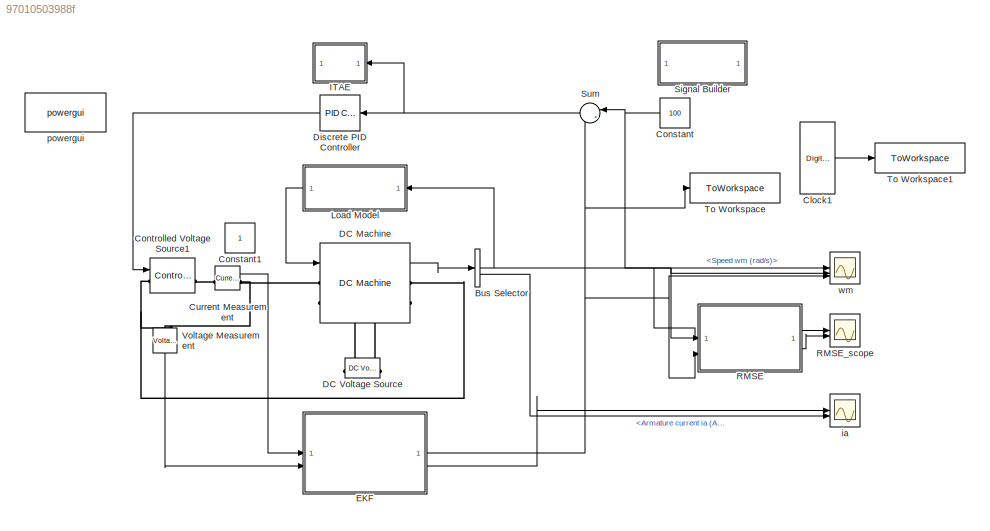
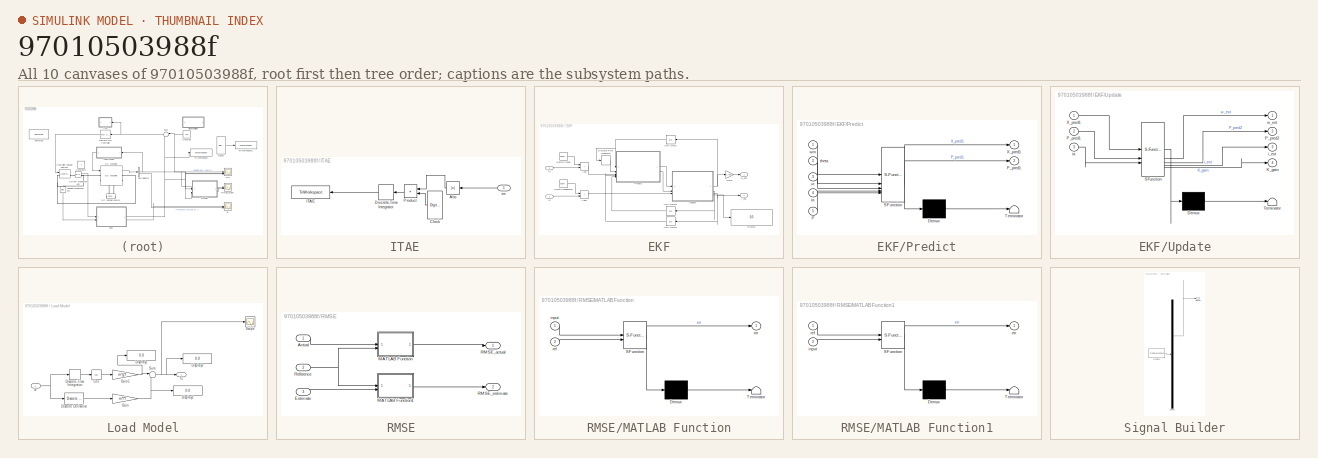
[diagram: thumbnail index - all 10 canvases of the model, root first then tree order]
MODEL slx_97010503988f
KIND model
CONFIG AbsTol = auto
CONFIG EnableMultiTasking = off
CONFIG FixedStep = auto
CONFIG InitFcn = P = eye(2);\nQ_prev = [0.5 0; 0 0.5];\nR_prev = eye(2);
CONFIG MaxStep = auto
CONFIG MinStep = auto
CONFIG PostLoadFcn = P = eye(2);\nQ_prev = [0.5 0; 0 0.5];\nR_prev = eye(2);
CONFIG PreLoadFcn = P = eye(2);\nQ_prev = [0.5 0; 0 0.5];\nR_prev = eye(2);
CONFIG RelTol = 1e-3
CONFIG SampleTimeConstraint = Unconstrained
CONFIG SolverName = VariableStepAuto
CONFIG StartFcn = P = eye(2);\nQ_prev = [0.5 0; 0 0.5];\nR_prev = eye(2);
CONFIG StartTime = 0.0
CONFIG StopTime = 1
BLOCK [SubSystem]  ITAE
  NameLocation = top
BLOCK [Abs]  ITAE/Abs
  NameLocation = top
  SaturateOnIntegerOverflow = off
BLOCK [DigitalClock]  ITAE/Clock
  NameLocation = top
  SampleTime = 10e-06
BLOCK [DiscreteIntegrator]  ITAE/Discrete-Time Integrator
  ICPrevOutput = DiscIntNeverNeededParam
  ICPrevScaledInput = DiscIntNeverNeededParam
  InitialConditionSetting = Auto
  NameLocation = top
  SampleTime = -1
BLOCK [ToWorkspace]  ITAE/ITAE
  FixptAsFi = on
  MaxDataPoints = inf
  SampleTime = -1
  Save2DSignal = 2-D array (concatenate along first dimension)
  VariableName = ITAE
BLOCK [Product]  ITAE/Product
  NameLocation = top
BLOCK [Inport]  ITAE/err
  NameLocation = top
BLOCK [BusSelector] Bus Selector
  OutputSignals = Speed wm (rad/s),Armature current ia (A)
BLOCK [DigitalClock] Clock1
  SampleTime = Ts
BLOCK [Constant] Constant
  NameLocation = top
  SampleTime = Ts
  Value = 100
BLOCK [Constant] Constant1
BLOCK [Reference] Controlled Voltage Source1  REF=spsControlledVoltageSourceLib/Controlled Voltage Source
  LibrarySourceBlock = sps_lib/Sources/Controlled Voltage Source
  NameLocation = left
  SourceBlock = spsControlledVoltageSourceLib/Controlled Voltage Source
  SourceType = Controlled Voltage Source
BLOCK [Reference] Current Measurement  REF=spsCurrentMeasurementLib/Current Measurement
  LibrarySourceBlock = sps_lib/Sensors and Measurements/Current Measurement
  SourceBlock = spsCurrentMeasurementLib/Current Measurement
  SourceType = Current Measurement
  UserDataPersistent = on
BLOCK [Reference] DC Machine  REF=spsDCMachineLib/DC Machine
  LibrarySourceBlock = sps_lib/Electrical Machines/DC Machine
  SourceBlock = spsDCMachineLib/DC Machine
  SourceType = DC machine
BLOCK [Reference] DC Voltage Source  REF=spsDCVoltageSourceLib/DC Voltage Source
  LibrarySourceBlock = sps_lib/Sources/DC Voltage Source
  NameLocation = right
  SourceBlock = spsDCVoltageSourceLib/DC Voltage Source
  SourceType = DC Voltage Source
BLOCK [Reference] Discrete PID Controller  REF=slpidlib/PID Controller
  LibrarySourceBlock = hdlsllib/Discrete/Discrete PID Controller
  NameLocation = top
  SourceBlock = slpidlib/PID Controller
  SourceType = PID 1dof
BLOCK [SubSystem] EKF
BLOCK [Sum] EKF/Add
  IconShape = rectangular
BLOCK [Sum] EKF/Add1
  IconShape = rectangular
BLOCK [DiscreteIntegrator] EKF/Discrete-Time Integrator
  ICPrevOutput = DiscIntNeverNeededParam
  ICPrevScaledInput = DiscIntNeverNeededParam
  InitialConditionSetting = Auto
  SampleTime = -1
BLOCK [Display] EKF/Display
  Decimation = 1
BLOCK [Gain] EKF/Gain1
  Gain = 1.406
BLOCK [Inport] EKF/Ia
BLOCK [Reference] EKF/Noise Pengukuran  REF=simulink/Sources/Band-Limited
White Noise
  SourceBlock = simulink/Sources/Band-Limited\nWhite Noise
  SourceType = Band-Limited White Noise.
BLOCK [Reference] EKF/Noise Proses  REF=simulink/Sources/Band-Limited
White Noise
  SourceBlock = simulink/Sources/Band-Limited\nWhite Noise
  SourceType = Band-Limited White Noise.
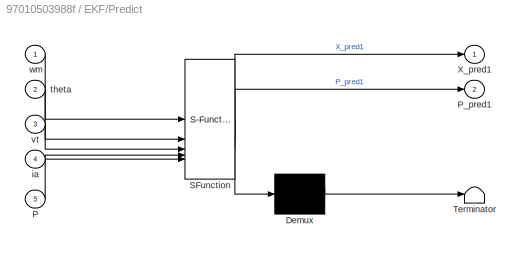
BLOCK [SubSystem] EKF/Predict
  ErrorFcn = Stateflow.Translate.translate
  LibrarySourceBlock = simulink/User-Defined\nFunctions/MATLAB Function
  PermitHierarchicalResolution = ExplicitOnly
  SFBlockType = MATLAB Function
  TreatAsAtomicUnit = on
BLOCK [Demux] EKF/Predict/ Demux 
  Outputs = 1
BLOCK [S-Function] EKF/Predict/ SFunction 
  EnableBusSupport = on
  FunctionName = sf_sfun
  PortCounts = [5 3]
  SFcnIsStateOwnerBlock = off
  SFunctionDeploymentMode = off
  Tag = Stateflow S-Function 6
BLOCK [Terminator] EKF/Predict/ Terminator 
BLOCK [Inport] EKF/Predict/P
  Port = 5
BLOCK [Outport] EKF/Predict/P_pred1
  Port = 2
BLOCK [Outport] EKF/Predict/X_pred1
BLOCK [Inport] EKF/Predict/ia
  Port = 4
BLOCK [Inport] EKF/Predict/theta
  Port = 2
BLOCK [Inport] EKF/Predict/vt
  Port = 3
BLOCK [Inport] EKF/Predict/wm
BLOCK [UnitDelay] EKF/Unit Delay
  HasFrameUpgradeWarning = on
  NameLocation = top
  SampleTime = -1
BLOCK [UnitDelay] EKF/Unit Delay1
  HasFrameUpgradeWarning = on
  NameLocation = top
  SampleTime = -1
BLOCK [UnitDelay] EKF/Unit Delay2
  HasFrameUpgradeWarning = on
  NameLocation = top
  SampleTime = -1
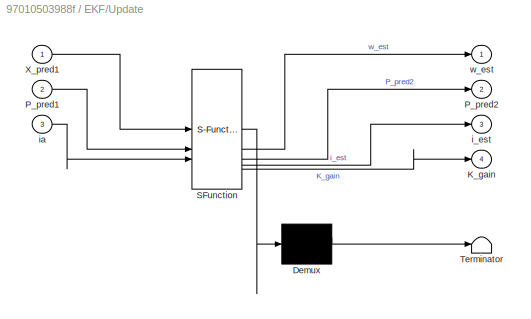
BLOCK [SubSystem] EKF/Update
  ErrorFcn = Stateflow.Translate.translate
  LibrarySourceBlock = simulink/User-Defined\nFunctions/MATLAB Function
  PermitHierarchicalResolution = ExplicitOnly
  SFBlockType = MATLAB Function
  TreatAsAtomicUnit = on
BLOCK [Demux] EKF/Update/ Demux 
  Outputs = 1
BLOCK [S-Function] EKF/Update/ SFunction 
  EnableBusSupport = on
  FunctionName = sf_sfun
  PortCounts = [3 5]
  SFcnIsStateOwnerBlock = off
  SFunctionDeploymentMode = off
  Tag = Stateflow S-Function 1
BLOCK [Terminator] EKF/Update/ Terminator 
BLOCK [Outport] EKF/Update/K_gain
  Port = 4
BLOCK [Inport] EKF/Update/P_pred1
  Port = 2
BLOCK [Outport] EKF/Update/P_pred2
  Port = 2
BLOCK [Inport] EKF/Update/X_pred1
BLOCK [Outport] EKF/Update/i_est
  Port = 3
BLOCK [Inport] EKF/Update/ia
  Port = 3
BLOCK [Outport] EKF/Update/w_est
BLOCK [Inport] EKF/Vt
  Port = 2
BLOCK [Outport] EKF/i_est
  Port = 2
  PortDimensions = 1
BLOCK [Outport] EKF/w_est
  PortDimensions = 1
BLOCK [SubSystem] Load Model
BLOCK [Trigonometry] Load Model/Cos
  Operator = cos
BLOCK [Reference] Load Model/Discrete Derivative  REF=simulink/Discrete/Discrete Derivative
  SourceBlock = simulink/Discrete/Discrete Derivative
  SourceType = Discrete Derivative
BLOCK [DiscreteIntegrator] Load Model/Discrete-Time Integrator
  ICPrevOutput = DiscIntNeverNeededParam
  ICPrevScaledInput = DiscIntNeverNeededParam
  InitialConditionSetting = Auto
  SampleTime = -1
BLOCK [Display] Load Model/Display1
  Decimation = 1
BLOCK [Display] Load Model/Display2
  Decimation = 1
BLOCK [Display] Load Model/Display3
  Decimation = 1
BLOCK [Gain] Load Model/Gain
  Gain = m*l*l
  Multiplication = Matrix(K*u)
BLOCK [Gain] Load Model/Gain1
  Gain = m*g*l
  Multiplication = Matrix(K*u)
BLOCK [Scope] Load Model/Scope
  Floating = off
  NumInputPorts = 1
  ScopeSpecificationString = Simulink.scopes.TimeScopeBlockCfg('CurrentConfiguration', extmgr.ConfigurationSet(extmgr.Configuration('Core','General UI',true),extmgr.Configuration('Core','Source UI',true),extmgr.Configuration('Sources','WiredSimulink',true,'DataLoggingVariableName','ScopeData1','DataLoggingSaveFormat','Array','DataLoggingDecimation','1'),extmgr.Configuration('Visuals','Time Domain',true,'SerializedDisplays',{s...<+1693ch>
BLOCK [Sum] Load Model/Sum
  Inputs = |++
BLOCK [Outport] Load Model/TL
  IconDisplay = Signal name
BLOCK [Inport] Load Model/w
BLOCK [SubSystem] RMSE
BLOCK [Inport] RMSE/Actual
BLOCK [Inport] RMSE/Estimate
  Port = 3
BLOCK [SubSystem] RMSE/MATLAB Function
  ErrorFcn = Stateflow.Translate.translate
  LibrarySourceBlock = simulink/User-Defined\nFunctions/MATLAB Function
  PermitHierarchicalResolution = ExplicitOnly
  SFBlockType = MATLAB Function
  TreatAsAtomicUnit = on
BLOCK [Demux] RMSE/MATLAB Function/ Demux 
  Outputs = 1
BLOCK [S-Function] RMSE/MATLAB Function/ SFunction 
  EnableBusSupport = on
  FunctionName = sf_sfun
  PortCounts = [2 2]
  SFcnIsStateOwnerBlock = off
  SFunctionDeploymentMode = off
  Tag = Stateflow S-Function 2
BLOCK [Terminator] RMSE/MATLAB Function/ Terminator 
BLOCK [Outport] RMSE/MATLAB Function/err
BLOCK [Inport] RMSE/MATLAB Function/input
BLOCK [Inport] RMSE/MATLAB Function/ref
  Port = 2
BLOCK [SubSystem] RMSE/MATLAB Function1
  ErrorFcn = Stateflow.Translate.translate
  LibrarySourceBlock = simulink/User-Defined\nFunctions/MATLAB Function
  PermitHierarchicalResolution = ExplicitOnly
  SFBlockType = MATLAB Function
  TreatAsAtomicUnit = on
BLOCK [Demux] RMSE/MATLAB Function1/ Demux 
  Outputs = 1
BLOCK [S-Function] RMSE/MATLAB Function1/ SFunction 
  EnableBusSupport = on
  FunctionName = sf_sfun
  PortCounts = [2 2]
  SFcnIsStateOwnerBlock = off
  SFunctionDeploymentMode = off
  Tag = Stateflow S-Function 3
BLOCK [Terminator] RMSE/MATLAB Function1/ Terminator 
BLOCK [Outport] RMSE/MATLAB Function1/err
BLOCK [Inport] RMSE/MATLAB Function1/input
  Port = 2
BLOCK [Inport] RMSE/MATLAB Function1/ref
BLOCK [Outport] RMSE/RMSE_actual
BLOCK [Outport] RMSE/RMSE_estimate
  Port = 2
BLOCK [Inport] RMSE/Reference
  Port = 2
BLOCK [Scope] RMSE_scope
  Floating = off
  NumInputPorts = 2
  ScopeSpecificationString = Simulink.scopes.TimeScopeBlockCfg('CurrentConfiguration', extmgr.ConfigurationSet(extmgr.Configuration('Core','General UI',true,'FigureColor',[1 1 1]),extmgr.Configuration('Core','Source UI',true),extmgr.Configuration('Sources','WiredSimulink',true,'DataLoggingVariableName','ScopeData1'),extmgr.Configuration('Visuals','Time Domain',true,'SerializedDisplays',{struct('MinYLimReal','-2.04886','MaxYLi...<+1927ch>
BLOCK [SubSystem] Signal Builder
  ClipboardFcn = sigbuilder_block('clipboard');
  CloseFcn = sigbuilder_block('close');
  ContinueFcn = sigbuilder_block('continue');
  CopyFcn = sigbuilder_block('copy');
  DeleteFcn = sigbuilder_block('delete');
  LoadFcn = sigbuilder_block('load');
  MaskHideContents = on
  ModelCloseFcn = sigbuilder_block('modelClose');
  NameChangeFcn = sigbuilder_block('namechange');
  NameLocation = top
  OpenFcn = sigbuilder_block('open',[276 72 550.5 362.5 ]);
  PauseFcn = sigbuilder_block('pause');
  PreSaveFcn = sigbuilder_block('preSave');
  StartFcn = sigbuilder_block('start');
  StopFcn = sigbuilder_block('stop');
  Tag = STV Subsys
BLOCK [Demux] Signal Builder/Demux
  DisplayOption = none
  Outputs = 1
  Tag = STV Demux
BLOCK [FromWorkspace] Signal Builder/FromWs
  Tag = STV FromWs
  VariableName = tuvar
BLOCK [Outport] Signal Builder/Signal 1
  Tag = STV Outport
BLOCK [Sum] Sum
  Inputs = |+-
  NameLocation = top
BLOCK [ToWorkspace] To Workspace
  FixptAsFi = on
  MaxDataPoints = inf
  SampleTime = -1
  Save2DSignal = 2-D array (concatenate along first dimension)
  VariableName = omega
BLOCK [ToWorkspace] To Workspace1
  FixptAsFi = on
  MaxDataPoints = inf
  SampleTime = Ts
  Save2DSignal = 2-D array (concatenate along first dimension)
  VariableName = time
BLOCK [Reference] Voltage Measurement  REF=spsVoltageMeasurementLib/Voltage Measurement
  LibrarySourceBlock = sps_lib/Sensors and Measurements/Voltage Measurement
  NameLocation = left
  SourceBlock = spsVoltageMeasurementLib/Voltage Measurement
  SourceType = Voltage Measurement
  UserDataPersistent = on
BLOCK [Scope] ia
  Floating = off
  NumInputPorts = 2
  ScopeSpecificationString = Simulink.scopes.TimeScopeBlockCfg('CurrentConfiguration', extmgr.ConfigurationSet(extmgr.Configuration('Core','General UI',true,'FigureColor',[1 1 1]),extmgr.Configuration('Core','Source UI',true),extmgr.Configuration('Sources','WiredSimulink',true,'DataLoggingVariableName','ScopeData1'),extmgr.Configuration('Visuals','Time Domain',true,'SerializedDisplays',{struct('MinYLimReal','-31.54936','MaxYL...<+1981ch>
BLOCK [Reference] powergui  REF=spspowerguiLib/powergui
  Priority = 1
  SourceBlock = spspowerguiLib/powergui
  SourceType = PSB option menu block
BLOCK [Scope] wm
  Floating = off
  NumInputPorts = 3
  ScopeSpecificationString = Simulink.scopes.TimeScopeBlockCfg('CurrentConfiguration', extmgr.ConfigurationSet(extmgr.Configuration('Core','General UI',true,'FigureColor',[1 1 1]),extmgr.Configuration('Core','Source UI',true),extmgr.Configuration('Sources','WiredSimulink',true,'DataLogging',true,'DataLoggingVariableName','Scope'),extmgr.Configuration('Visuals','Time Domain',true,'SerializedDisplays',{struct('MinYLimReal','-16...<+2081ch>
LINE  ITAE/Abs:1 ->  ITAE/Product:1
LINE  ITAE/Clock:1 ->  ITAE/Product:2
LINE  ITAE/Discrete-Time Integrator:1 ->  ITAE/ITAE:1
LINE  ITAE/Product:1 ->  ITAE/Discrete-Time Integrator:1
LINE  ITAE/err:1 ->  ITAE/Abs:1
NET Bus Selector:1 -> Load Model:1, RMSE:1, wm:1
LINE Bus Selector:2 -> ia:2
LINE Clock1:1 -> To Workspace1:1
NET Constant:1 -> RMSE:2, Sum:1, wm:2
LINE Current Measurement:1 -> EKF:1
LINE DC Machine:1 -> Bus Selector:1
LINE Discrete PID Controller:1 -> Controlled Voltage Source1:1
LINE EKF/Add1:1 -> EKF/Update:3
LINE EKF/Add:1 -> EKF/Predict:3
LINE EKF/Discrete-Time Integrator:1 -> EKF/Predict:2
LINE EKF/Gain1:1 -> EKF/w_est:1
LINE EKF/Ia:1 -> EKF/Add1:2
LINE EKF/Noise Pengukuran:1 -> EKF/Add1:1
LINE EKF/Noise Proses:1 -> EKF/Add:1
LINE EKF/Predict:1 -> EKF/Update:1
LINE EKF/Predict:2 -> EKF/Update:2
LINE EKF/Unit Delay1:1 -> EKF/Predict:5
LINE EKF/Unit Delay2:1 -> EKF/Predict:4
NET EKF/Unit Delay:1 -> EKF/Discrete-Time Integrator:1, EKF/Predict:1
NET EKF/Update:1 -> EKF/Gain1:1, EKF/Unit Delay:1
LINE EKF/Update:2 -> EKF/Unit Delay1:1
NET EKF/Update:3 -> EKF/Unit Delay2:1, EKF/i_est:1
LINE EKF/Update:4 -> EKF/Display:1
LINE EKF/Vt:1 -> EKF/Add:2
NET EKF:1 -> RMSE:3, Sum:2, To Workspace:1, wm:3
LINE EKF:2 -> ia:1
LINE Load Model/Cos:1 -> Load Model/Gain1:1
LINE Load Model/Discrete Derivative:1 -> Load Model/Gain:1
LINE Load Model/Discrete-Time Integrator:1 -> Load Model/Cos:1
NET Load Model/Gain1:1 -> Load Model/Display2:1, Load Model/Sum:1
NET Load Model/Gain:1 -> Load Model/Display1:1, Load Model/Sum:2
NET Load Model/Sum:1 -> Load Model/Display3:1, Load Model/Scope:1, Load Model/TL:1
NET Load Model/w:1 -> Load Model/Discrete Derivative:1, Load Model/Discrete-Time Integrator:1
LINE Load Model:1 -> DC Machine:1
LINE RMSE/Actual:1 -> RMSE/MATLAB Function:1
LINE RMSE/Estimate:1 -> RMSE/MATLAB Function1:2
LINE RMSE/MATLAB Function1:1 -> RMSE/RMSE_estimate:1
LINE RMSE/MATLAB Function:1 -> RMSE/RMSE_actual:1
NET RMSE/Reference:1 -> RMSE/MATLAB Function1:1, RMSE/MATLAB Function:2
LINE RMSE:1 -> RMSE_scope:1
LINE RMSE:2 -> RMSE_scope:2
NET Sum:1 ->  ITAE:1, Discrete PID Controller:1
LINE Voltage Measurement:1 -> EKF:2
PNET net1: Controlled Voltage Source1:LConn1 -- DC Machine:RConn1 -- Voltage Measurement:LConn2
PLINE Controlled Voltage Source1:RConn1 -- Current Measurement:LConn1
PNET net2: Current Measurement:RConn1 -- DC Machine:LConn1 -- Voltage Measurement:LConn1
PLINE DC Machine:LConn2 -- DC Voltage Source:RConn1
PLINE DC Machine:RConn2 -- DC Voltage Source:LConn1
note: NET lines group one-source signal fan-out (src -> all destinations, sorted); 1:1 wires keep LINE; PNET lines group multi-terminal physical nets as a canonical sorted terminal list (undirected conserving connections); 2-terminal nets keep the pairwise PLINE form
CHART EKF/Update states=1 transitions=1
  STATE_LABEL 'eML_blk_kernel()'
  STATE_LABEL "SCRIPT:\nfunction [w_est, P_pred2, i_est, K_gain] = fcn(X_pred1, P_pred1, ia)\n\nHk = [0 0;0 1]; % jacobian\nR = [0.5 0; 0 0.5]; % kovarians proses\n\nyk = Hk*[0;ia]; % vektor observasi\nSk = Hk*P_pred1*Hk' + R; % kovarians inovasi\n\nK_gain = P_pred1*Hk'*(Sk^-1); % kalman gain\n\nX_pred2 = X_pred1 + K_gain*(yk - Hk*X_pred1); % estimasi state\nP_pred2 = P_pred1*(eye(2)-K_gain*Hk); % estimasi kovarians prediks...<+82ch>"
CHART RMSE/MATLAB Function states=1 transitions=1
  STATE_LABEL 'eML_blk_kernel()'
  STATE_LABEL 'SCRIPT:\nfunction err = mse(input, ref)\n\nerr = sqrt(immse(ref, input));\n'
CHART RMSE/MATLAB Function1 states=1 transitions=1
  STATE_LABEL 'eML_blk_kernel()'
  STATE_LABEL 'SCRIPT:\nfunction err = mse(ref, input)\n\nerr = sqrt(immse(ref, input));\n'
CHART EKF/Predict states=1 transitions=1
  STATE_LABEL 'eML_blk_kernel()'
  STATE_LABEL "SCRIPT:\nfunction [X_pred1, P_pred1] = fcn(wm,theta,vt,ia,P)\n\nw_est = 1*wm + 0.0005*ia + (-7.0677e-04*cos(theta)-1.4873e-04);\ni_est = -0.0006*wm + 0.9991*ia + 3.5714e-04*vt;\nX_pred1 = [w_est; i_est]; % prediksi state\n\nFk= [1.0000 0.0005; % jacobian\n    -0.0006 0.9991];\nQ =[0.5 0; 0 0.5]; % kovarians proses\n\nP_pred1 = Fk*P*Fk'+ Q; % kovarians prediksi\n\n\n\n"
CHART  states=0 transitions=0
CHART  states=0 transitions=0
CHART  states=0 transitions=0
CHART  states=0 transitions=0
